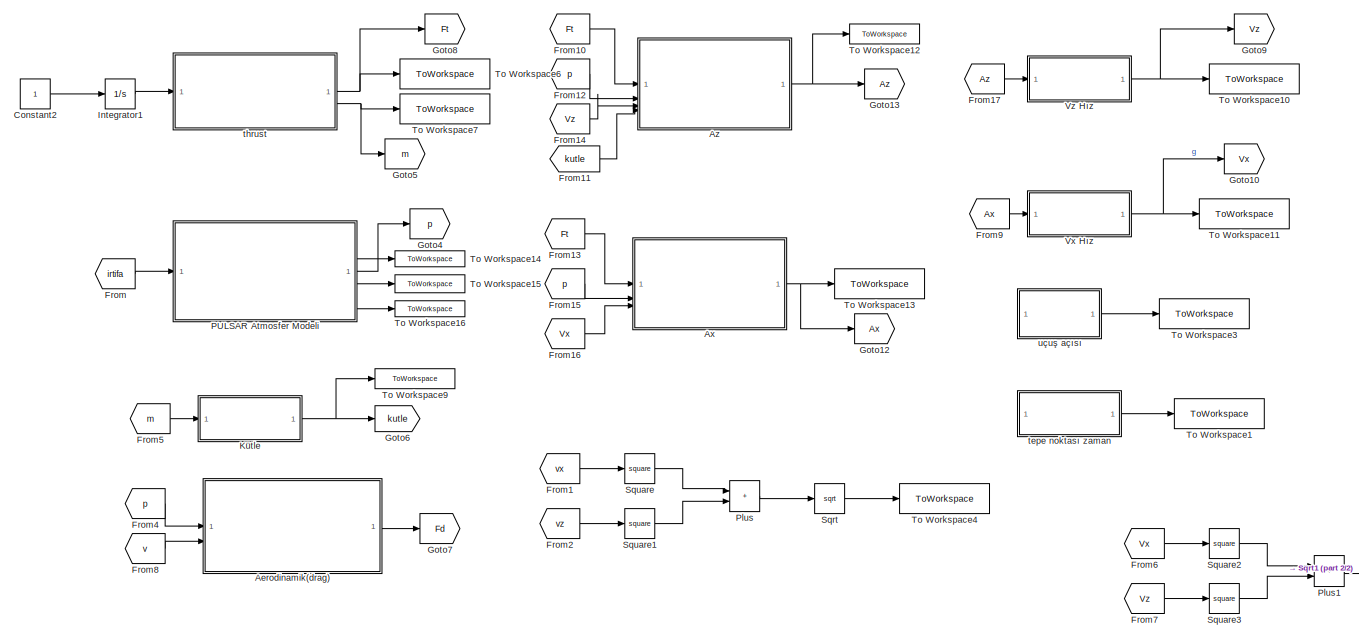
[diagram: root canvas - part 1/2, most of the canvas]
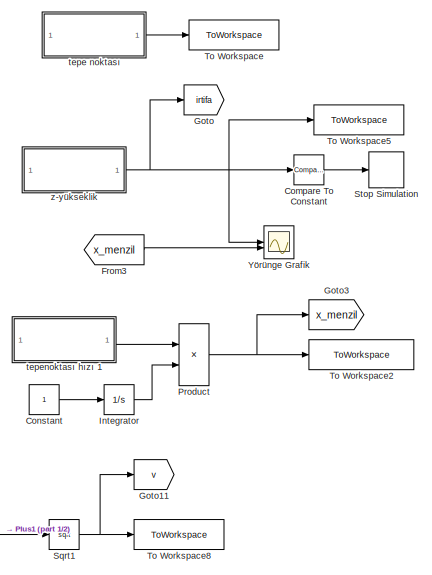
[diagram: root canvas - part 2/2, right side, full height]
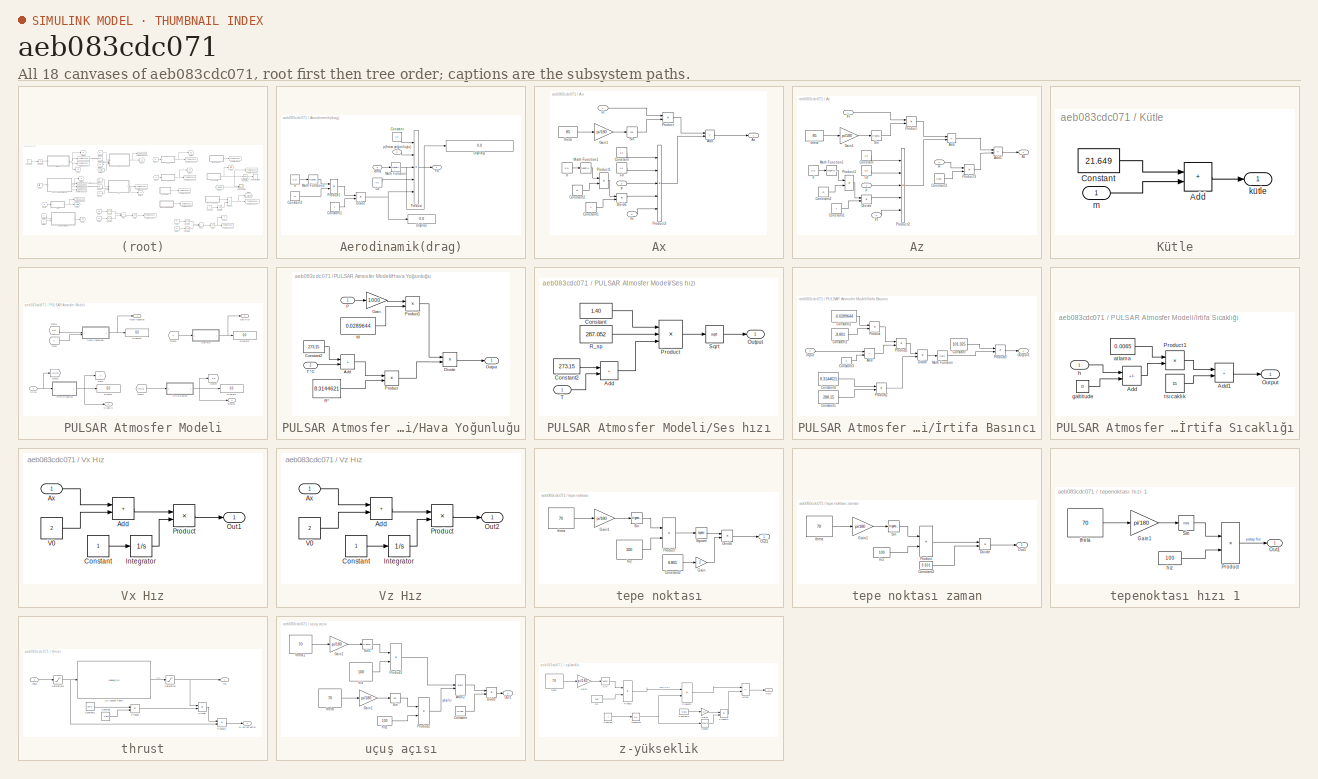
[diagram: thumbnail index - all 18 canvases of the model, root first then tree order]
MODEL slx_aeb083cdc071
KIND model
CONFIG AbsTol = auto
CONFIG EnableMultiTasking = off
CONFIG FixedStep = auto
CONFIG MaxStep = auto
CONFIG MinStep = auto
CONFIG RelTol = 1e-3
CONFIG SampleTimeConstraint = Unconstrained
CONFIG SolverName = VariableStepAuto
CONFIG StartTime = 0.0
CONFIG StopTime = 10
BLOCK [SubSystem] Aerodinamik(drag)
BLOCK [Constant] Aerodinamik(drag)/Cd
  Value = 0.5
BLOCK [Constant] Aerodinamik(drag)/Constant
  Value = 1/2
BLOCK [Constant] Aerodinamik(drag)/Constant1
  Value = 4
BLOCK [Constant] Aerodinamik(drag)/Constant2
  Value = pi
BLOCK [Display] Aerodinamik(drag)/Display
  Decimation = 1
BLOCK [Display] Aerodinamik(drag)/Display1
  Decimation = 1
  Format = long
BLOCK [Product] Aerodinamik(drag)/Divide
  Inputs = */
BLOCK [Outport] Aerodinamik(drag)/Fd
BLOCK [Math] Aerodinamik(drag)/Math Function
  Operator = magnitude^2
BLOCK [Math] Aerodinamik(drag)/Math Function1
  Operator = magnitude^2
BLOCK [Product] Aerodinamik(drag)/Product
  Inputs = 5
BLOCK [Product] Aerodinamik(drag)/Product1
BLOCK [Constant] Aerodinamik(drag)/d
  Value = 0.11
BLOCK [Inport] Aerodinamik(drag)/p(hava yoğunluğu)
BLOCK [Inport] Aerodinamik(drag)/v(m//s)
  Port = 2
BLOCK [SubSystem] Ax
BLOCK [Sum] Ax/Add
  IconShape = rectangular
  Inputs = +-
BLOCK [Outport] Ax/Ax
BLOCK [Constant] Ax/Cd
  Value = 0.5
BLOCK [Constant] Ax/Constant
  Value = 1/2
BLOCK [Constant] Ax/Constant1
  Value = 4
BLOCK [Constant] Ax/Constant2
  Value = pi
BLOCK [Product] Ax/Divide
  Inputs = */
BLOCK [Inport] Ax/Ft
BLOCK [Gain] Ax/Gain1
  Gain = pi/180
BLOCK [Math] Ax/Math Function1
  Operator = magnitude^2
BLOCK [Product] Ax/Product
BLOCK [Product] Ax/Product1
BLOCK [Product] Ax/Product2
  Inputs = 5
BLOCK [Trigonometry] Ax/Sin
  Operator = cos
BLOCK [Inport] Ax/Vx
  Port = 3
BLOCK [Constant] Ax/d
  Value = 0.11
BLOCK [Inport] Ax/p
  Port = 2
BLOCK [Constant] Ax/theta
  Value = 85
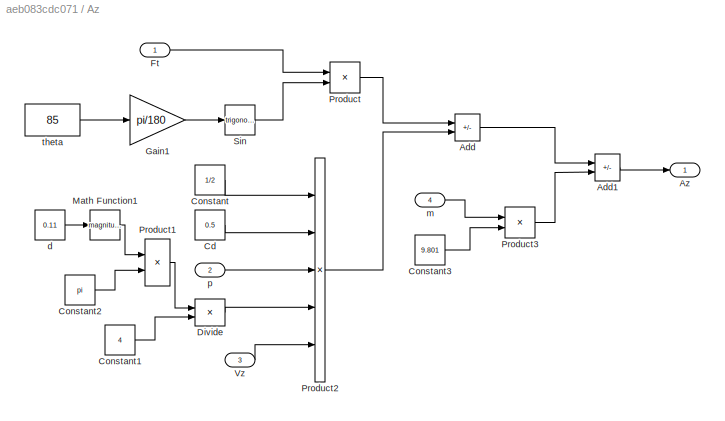
BLOCK [SubSystem] Az
BLOCK [Sum] Az/Add
  IconShape = rectangular
  Inputs = +-
BLOCK [Sum] Az/Add1
  IconShape = rectangular
  Inputs = +-
BLOCK [Outport] Az/Az
BLOCK [Constant] Az/Cd
  Value = 0.5
BLOCK [Constant] Az/Constant
  Value = 1/2
BLOCK [Constant] Az/Constant1
  Value = 4
BLOCK [Constant] Az/Constant2
  Value = pi
BLOCK [Constant] Az/Constant3
  Value = 9.801
BLOCK [Product] Az/Divide
  Inputs = */
BLOCK [Inport] Az/Ft
BLOCK [Gain] Az/Gain1
  Gain = pi/180
BLOCK [Math] Az/Math Function1
  Operator = magnitude^2
BLOCK [Product] Az/Product
BLOCK [Product] Az/Product1
BLOCK [Product] Az/Product2
  Inputs = 5
BLOCK [Product] Az/Product3
BLOCK [Trigonometry] Az/Sin
BLOCK [Inport] Az/Vz
  Port = 3
BLOCK [Constant] Az/d
  Value = 0.11
BLOCK [Inport] Az/m
  Port = 4
BLOCK [Inport] Az/p
  Port = 2
BLOCK [Constant] Az/theta
  Value = 85
BLOCK [Reference] Compare To Constant  REF=simulink/Logic and Bit
Operations/Compare
To Constant
  SourceBlock = simulink/Logic and Bit\nOperations/Compare\nTo Constant
  SourceType = Compare To Constant
BLOCK [Constant] Constant
BLOCK [Constant] Constant2
BLOCK [From] From
  GotoTag = irtifa
BLOCK [From] From1
  GotoTag = vx
BLOCK [From] From10
  GotoTag = Ft
BLOCK [From] From11
  GotoTag = kutle
BLOCK [From] From12
  GotoTag = p
BLOCK [From] From13
  GotoTag = Ft
BLOCK [From] From14
  GotoTag = Vz
BLOCK [From] From15
  GotoTag = p
BLOCK [From] From16
  GotoTag = Vx
BLOCK [From] From17
  GotoTag = Az
BLOCK [From] From2
  GotoTag = vz
BLOCK [From] From3
  GotoTag = x_menzil
BLOCK [From] From4
  GotoTag = p
BLOCK [From] From5
  GotoTag = m
BLOCK [From] From6
  GotoTag = Vx
BLOCK [From] From7
  GotoTag = Vz
BLOCK [From] From8
  GotoTag = v
BLOCK [From] From9
  GotoTag = Ax
BLOCK [Goto] Goto
  GotoTag = irtifa
BLOCK [Goto] Goto10
  GotoTag = Vx
BLOCK [Goto] Goto11
  GotoTag = v
BLOCK [Goto] Goto12
  GotoTag = Ax
BLOCK [Goto] Goto13
  GotoTag = Az
BLOCK [Goto] Goto3
  GotoTag = x_menzil
BLOCK [Goto] Goto4
  GotoTag = p
BLOCK [Goto] Goto5
  GotoTag = m
BLOCK [Goto] Goto6
  GotoTag = kutle
BLOCK [Goto] Goto7
  GotoTag = Fd
BLOCK [Goto] Goto8
  GotoTag = Ft
BLOCK [Goto] Goto9
  GotoTag = Vz
BLOCK [Integrator] Integrator
BLOCK [Integrator] Integrator1
BLOCK [SubSystem] Kütle
BLOCK [Sum] Kütle/Add
  IconShape = rectangular
BLOCK [Constant] Kütle/Constant
  Value = 21.649
BLOCK [Outport] Kütle/kütle
BLOCK [Inport] Kütle/m
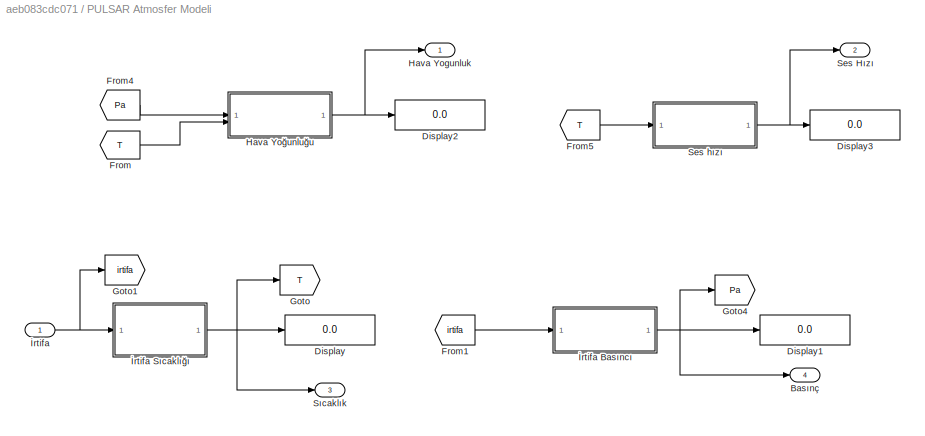
BLOCK [SubSystem] PULSAR Atmosfer Modeli
BLOCK [Outport] PULSAR Atmosfer Modeli/Basınç
  Port = 4
BLOCK [Display] PULSAR Atmosfer Modeli/Display
  Decimation = 1
BLOCK [Display] PULSAR Atmosfer Modeli/Display1
  Decimation = 1
BLOCK [Display] PULSAR Atmosfer Modeli/Display2
  Decimation = 1
BLOCK [Display] PULSAR Atmosfer Modeli/Display3
  Decimation = 1
BLOCK [From] PULSAR Atmosfer Modeli/From
  GotoTag = T
BLOCK [From] PULSAR Atmosfer Modeli/From1
  GotoTag = irtifa
BLOCK [From] PULSAR Atmosfer Modeli/From4
  GotoTag = Pa
BLOCK [From] PULSAR Atmosfer Modeli/From5
  GotoTag = T
BLOCK [Goto] PULSAR Atmosfer Modeli/Goto
  GotoTag = T
BLOCK [Goto] PULSAR Atmosfer Modeli/Goto1
  GotoTag = irtifa
BLOCK [Goto] PULSAR Atmosfer Modeli/Goto4
  GotoTag = Pa
BLOCK [Outport] PULSAR Atmosfer Modeli/Hava Yogunluk
BLOCK [SubSystem] PULSAR Atmosfer Modeli/Hava Yoğunluğu
BLOCK [Sum] PULSAR Atmosfer Modeli/Hava Yoğunluğu/Add
  IconShape = rectangular
BLOCK [Constant] PULSAR Atmosfer Modeli/Hava Yoğunluğu/Constant2
  Value = 273.15
BLOCK [Product] PULSAR Atmosfer Modeli/Hava Yoğunluğu/Divide
  Inputs = */
BLOCK [Gain] PULSAR Atmosfer Modeli/Hava Yoğunluğu/Gain
  Gain = 1000
BLOCK [Constant] PULSAR Atmosfer Modeli/Hava Yoğunluğu/M
  Value = 0.0289644
BLOCK [Outport] PULSAR Atmosfer Modeli/Hava Yoğunluğu/Output
BLOCK [Inport] PULSAR Atmosfer Modeli/Hava Yoğunluğu/P
BLOCK [Product] PULSAR Atmosfer Modeli/Hava Yoğunluğu/Product
BLOCK [Product] PULSAR Atmosfer Modeli/Hava Yoğunluğu/Product1
BLOCK [Constant] PULSAR Atmosfer Modeli/Hava Yoğunluğu/R*
  Value = 8.3144621
BLOCK [Inport] PULSAR Atmosfer Modeli/Hava Yoğunluğu/T*C
  Port = 2
BLOCK [Outport] PULSAR Atmosfer Modeli/Ses Hızı
  Port = 2
BLOCK [SubSystem] PULSAR Atmosfer Modeli/Ses hızı
BLOCK [Sum] PULSAR Atmosfer Modeli/Ses hızı/Add
  IconShape = rectangular
BLOCK [Constant] PULSAR Atmosfer Modeli/Ses hızı/Constant
  Value = 1.40
BLOCK [Constant] PULSAR Atmosfer Modeli/Ses hızı/Constant2
  Value = 273.15
BLOCK [Outport] PULSAR Atmosfer Modeli/Ses hızı/Output
BLOCK [Product] PULSAR Atmosfer Modeli/Ses hızı/Product
  Inputs = 3
BLOCK [Constant] PULSAR Atmosfer Modeli/Ses hızı/R_sp
  Value = 287.052
BLOCK [Sqrt] PULSAR Atmosfer Modeli/Ses hızı/Sqrt
BLOCK [Inport] PULSAR Atmosfer Modeli/Ses hızı/T
BLOCK [Outport] PULSAR Atmosfer Modeli/Sıcaklık
  Port = 3
BLOCK [Inport] PULSAR Atmosfer Modeli/İrtifa
BLOCK [SubSystem] PULSAR Atmosfer Modeli/İrtifa Basıncı
BLOCK [Sum] PULSAR Atmosfer Modeli/İrtifa Basıncı/Add
  IconShape = rectangular
  Inputs = --
BLOCK [Constant] PULSAR Atmosfer Modeli/İrtifa Basıncı/Constant
  Value = 101.325
BLOCK [Constant] PULSAR Atmosfer Modeli/İrtifa Basıncı/Constant1
  Value = -9.801
BLOCK [Constant] PULSAR Atmosfer Modeli/İrtifa Basıncı/Constant2
  Value = -0.0289644
BLOCK [Constant] PULSAR Atmosfer Modeli/İrtifa Basıncı/Constant3
  Value = 0
BLOCK [Constant] PULSAR Atmosfer Modeli/İrtifa Basıncı/Constant4
  Value = 8.3144621
BLOCK [Constant] PULSAR Atmosfer Modeli/İrtifa Basıncı/Constant5
  Value = 288.15
BLOCK [Product] PULSAR Atmosfer Modeli/İrtifa Basıncı/Divide
  Inputs = */
BLOCK [Inport] PULSAR Atmosfer Modeli/İrtifa Basıncı/Input
BLOCK [Math] PULSAR Atmosfer Modeli/İrtifa Basıncı/Math Function
BLOCK [Outport] PULSAR Atmosfer Modeli/İrtifa Basıncı/Output3
BLOCK [Product] PULSAR Atmosfer Modeli/İrtifa Basıncı/Product
BLOCK [Product] PULSAR Atmosfer Modeli/İrtifa Basıncı/Product1
BLOCK [Product] PULSAR Atmosfer Modeli/İrtifa Basıncı/Product2
BLOCK [Product] PULSAR Atmosfer Modeli/İrtifa Basıncı/Product3
BLOCK [SubSystem] PULSAR Atmosfer Modeli/İrtifa Sıcaklığı
BLOCK [Sum] PULSAR Atmosfer Modeli/İrtifa Sıcaklığı/Add
  IconShape = rectangular
  Inputs = --
BLOCK [Sum] PULSAR Atmosfer Modeli/İrtifa Sıcaklığı/Add1
  IconShape = rectangular
BLOCK [Outport] PULSAR Atmosfer Modeli/İrtifa Sıcaklığı/Output
BLOCK [Product] PULSAR Atmosfer Modeli/İrtifa Sıcaklığı/Product1
BLOCK [Constant] PULSAR Atmosfer Modeli/İrtifa Sıcaklığı/atlama
  Value = 0.0065
BLOCK [Constant] PULSAR Atmosfer Modeli/İrtifa Sıcaklığı/galtitude
  Value = 0
BLOCK [Inport] PULSAR Atmosfer Modeli/İrtifa Sıcaklığı/h
BLOCK [Constant] PULSAR Atmosfer Modeli/İrtifa Sıcaklığı/tsıcaklık
  Value = 15
BLOCK [Sum] Plus
  IconShape = rectangular
BLOCK [Sum] Plus1
  IconShape = rectangular
BLOCK [Product] Product
BLOCK [Sqrt] Sqrt
BLOCK [Sqrt] Sqrt1
BLOCK [Math] Square
  Operator = square
BLOCK [Math] Square1
  Operator = square
BLOCK [Math] Square2
  Operator = square
BLOCK [Math] Square3
  Operator = square
BLOCK [Stop] Stop Simulation
BLOCK [ToWorkspace] To Workspace
  FixptAsFi = on
  MaxDataPoints = inf
  SampleTime = -1
  SaveFormat = Timeseries
  VariableName = tepe
BLOCK [ToWorkspace] To Workspace1
  FixptAsFi = on
  MaxDataPoints = inf
  SampleTime = -1
  SaveFormat = Timeseries
  VariableName = zamantepe
BLOCK [ToWorkspace] To Workspace10
  FixptAsFi = on
  MaxDataPoints = inf
  SampleTime = -1
  SaveFormat = Timeseries
  VariableName = Vz
BLOCK [ToWorkspace] To Workspace11
  FixptAsFi = on
  MaxDataPoints = inf
  SampleTime = -1
  SaveFormat = Timeseries
  VariableName = Vx
BLOCK [ToWorkspace] To Workspace12
  FixptAsFi = on
  MaxDataPoints = inf
  SampleTime = -1
  SaveFormat = Timeseries
  VariableName = Az
BLOCK [ToWorkspace] To Workspace13
  FixptAsFi = on
  MaxDataPoints = inf
  SampleTime = -1
  SaveFormat = Timeseries
  VariableName = Ax
BLOCK [ToWorkspace] To Workspace14
  FixptAsFi = on
  MaxDataPoints = inf
  SampleTime = -1
  SaveFormat = Timeseries
  VariableName = seshizi
BLOCK [ToWorkspace] To Workspace15
  FixptAsFi = on
  MaxDataPoints = inf
  SampleTime = -1
  SaveFormat = Timeseries
  VariableName = sicaklik
BLOCK [ToWorkspace] To Workspace16
  FixptAsFi = on
  MaxDataPoints = inf
  SampleTime = -1
  SaveFormat = Timeseries
  VariableName = basinc
BLOCK [ToWorkspace] To Workspace2
  FixptAsFi = on
  MaxDataPoints = inf
  SampleTime = -1
  SaveFormat = Timeseries
  VariableName = x_menzil
BLOCK [ToWorkspace] To Workspace3
  FixptAsFi = on
  MaxDataPoints = inf
  SampleTime = -1
  SaveFormat = Timeseries
  VariableName = uaci
BLOCK [ToWorkspace] To Workspace4
  FixptAsFi = on
  MaxDataPoints = inf
  SampleTime = -1
  SaveFormat = Timeseries
  VariableName = bsonhiz
BLOCK [ToWorkspace] To Workspace5
  FixptAsFi = on
  MaxDataPoints = inf
  SampleTime = -1
  SaveFormat = Timeseries
  VariableName = irtifa
BLOCK [ToWorkspace] To Workspace6
  FixptAsFi = on
  MaxDataPoints = inf
  SampleTime = -1
  VariableName = zitki
BLOCK [ToWorkspace] To Workspace7
  FixptAsFi = on
  MaxDataPoints = inf
  SampleTime = -1
  SaveFormat = Timeseries
  VariableName = m
BLOCK [ToWorkspace] To Workspace8
  FixptAsFi = on
  MaxDataPoints = inf
  SampleTime = -1
  SaveFormat = Timeseries
  VariableName = ktrhiz
BLOCK [ToWorkspace] To Workspace9
  FixptAsFi = on
  MaxDataPoints = inf
  SampleTime = -1
  SaveFormat = Timeseries
  VariableName = kutle
BLOCK [SubSystem] Vx Hız
BLOCK [Sum] Vx Hız/Add
  IconShape = rectangular
BLOCK [Inport] Vx Hız/Ax
BLOCK [Constant] Vx Hız/Constant
BLOCK [Integrator] Vx Hız/Integrator
BLOCK [Outport] Vx Hız/Out1
BLOCK [Product] Vx Hız/Product
BLOCK [Constant] Vx Hız/V0
  Value = 2
BLOCK [SubSystem] Vz Hız
BLOCK [Sum] Vz Hız/Add
  IconShape = rectangular
BLOCK [Inport] Vz Hız/Ax
BLOCK [Constant] Vz Hız/Constant
BLOCK [Integrator] Vz Hız/Integrator
BLOCK [Outport] Vz Hız/Out2
BLOCK [Product] Vz Hız/Product
BLOCK [Constant] Vz Hız/V0
  Value = 2
BLOCK [Scope] Yörünge Grafik
  Floating = off
  NumInputPorts = 2
  ScopeSpecificationString = Simulink.scopes.TimeScopeBlockCfg('CurrentConfiguration', extmgr.ConfigurationSet(extmgr.Configuration('Core','General UI',true),extmgr.Configuration('Core','Source UI',true),extmgr.Configuration('Sources','WiredSimulink',true),extmgr.Configuration('Visuals','Time Domain',true,'SerializedDisplays',{struct('MinYLimReal','-56.30944','MaxYLimReal','506.78499','YLabelReal','','MinYLimMag','0.00000','M...<+1432ch>
BLOCK [SubSystem] tepe noktası
BLOCK [SubSystem] tepe noktası zaman
BLOCK [Constant] tepe noktası zaman/Constant2
  Value = 9.801
BLOCK [Product] tepe noktası zaman/Divide
  Inputs = */
BLOCK [Gain] tepe noktası zaman/Gain1
  Gain = pi/180
BLOCK [Outport] tepe noktası zaman/Out1
BLOCK [Product] tepe noktası zaman/Product
BLOCK [Trigonometry] tepe noktası zaman/Sin
BLOCK [Constant] tepe noktası zaman/hız
  Value = 100
BLOCK [Constant] tepe noktası zaman/theta
  Value = 70
BLOCK [Constant] tepe noktası/Constant2
  Value = 9.801
BLOCK [Product] tepe noktası/Divide
  Inputs = */
BLOCK [Gain] tepe noktası/Gain
  Gain = 2
BLOCK [Gain] tepe noktası/Gain1
  Gain = pi/180
BLOCK [Outport] tepe noktası/Out1
BLOCK [Product] tepe noktası/Product
BLOCK [Trigonometry] tepe noktası/Sin
BLOCK [Math] tepe noktası/Square
  Operator = square
BLOCK [Constant] tepe noktası/hız
  Value = 100
BLOCK [Constant] tepe noktası/theta
  Value = 70
BLOCK [SubSystem] tepenoktası hızı 1
BLOCK [Gain] tepenoktası hızı 1/Gain1
  Gain = pi/180
BLOCK [Outport] tepenoktası hızı 1/Out1
BLOCK [Product] tepenoktası hızı 1/Product
BLOCK [Trigonometry] tepenoktası hızı 1/Sin
  Operator = cos
BLOCK [Constant] tepenoktası hızı 1/hız
  Value = 100
BLOCK [Constant] tepenoktası hızı 1/theta
  Value = 70
BLOCK [SubSystem] thrust
BLOCK [Lookup_n-D] thrust/1-D Lookup Table
  BreakpointsForDimension1 = zamanp
  InputPortMap = u0
  InternalRulePriority = Speed
  NumberOfTableDimensions = 1
  RndMeth = Simplest
  Table = itkip
BLOCK [Constant] thrust/Constant
  Value = -9.801
BLOCK [Constant] thrust/Constant1
  Value = 209.5
BLOCK [Product] thrust/Divide
  Inputs = */
BLOCK [Inport] thrust/Input
BLOCK [Product] thrust/Product
BLOCK [Product] thrust/Product1
BLOCK [Saturate] thrust/Saturation
  LowerLimit = 0
  UpperLimit = 3700
BLOCK [Saturate] thrust/Saturation1
  LowerLimit = 0
  UpperLimit = 6.5
BLOCK [Outport] thrust/itki
BLOCK [Outport] thrust/m (atılan kütle)
  Port = 2
BLOCK [SubSystem] uçuş açısı
BLOCK [Trigonometry] uçuş açısı/Atan2
  Operator = atan2
BLOCK [Constant] uçuş açısı/Constant
  Value = pi/180
BLOCK [Product] uçuş açısı/Divide
  Inputs = */
BLOCK [Gain] uçuş açısı/Gain1
  Gain = pi/180
BLOCK [Gain] uçuş açısı/Gain2
  Gain = pi/180
BLOCK [Outport] uçuş açısı/Out1
BLOCK [Product] uçuş açısı/Product1
BLOCK [Product] uçuş açısı/Product2
BLOCK [Trigonometry] uçuş açısı/Sin
  Operator = cos
BLOCK [Trigonometry] uçuş açısı/Sin1
BLOCK [Constant] uçuş açısı/hız
  Value = 100
BLOCK [Constant] uçuş açısı/hız1
  Value = 100
BLOCK [Constant] uçuş açısı/theta
  Value = 70
BLOCK [Constant] uçuş açısı/theta1
  Value = 70
BLOCK [SubSystem] z-yükseklik
BLOCK [Constant] z-yükseklik/Constant
BLOCK [Constant] z-yükseklik/Constant3
  Value = 9.801
BLOCK [Gain] z-yükseklik/Gain1
  Gain = pi/180
BLOCK [Gain] z-yükseklik/Gain3
  Gain = 1/2
BLOCK [Integrator] z-yükseklik/Integrator
BLOCK [Sum] z-yükseklik/Minus
  IconShape = rectangular
  Inputs = +-
BLOCK [Outport] z-yükseklik/Out1
BLOCK [Product] z-yükseklik/Product
BLOCK [Product] z-yükseklik/Product2
BLOCK [Product] z-yükseklik/Product3
BLOCK [Trigonometry] z-yükseklik/Sin
BLOCK [Math] z-yükseklik/Square
  Operator = square
BLOCK [Constant] z-yükseklik/hız
  Value = 100
BLOCK [Constant] z-yükseklik/theta
  Value = 70
LINE Aerodinamik(drag)/Cd:1 -> Aerodinamik(drag)/Product:4
LINE Aerodinamik(drag)/Constant1:1 -> Aerodinamik(drag)/Divide:2
LINE Aerodinamik(drag)/Constant2:1 -> Aerodinamik(drag)/Product1:2
LINE Aerodinamik(drag)/Constant:1 -> Aerodinamik(drag)/Product:1
NET Aerodinamik(drag)/Divide:1 -> Aerodinamik(drag)/Display:1, Aerodinamik(drag)/Product:5
LINE Aerodinamik(drag)/Math Function1:1 -> Aerodinamik(drag)/Product1:1
NET Aerodinamik(drag)/Math Function:1 -> Aerodinamik(drag)/Display1:1, Aerodinamik(drag)/Product:3
LINE Aerodinamik(drag)/Product1:1 -> Aerodinamik(drag)/Divide:1
LINE Aerodinamik(drag)/Product:1 -> Aerodinamik(drag)/Fd:1
LINE Aerodinamik(drag)/d:1 -> Aerodinamik(drag)/Math Function1:1
LINE Aerodinamik(drag)/p(hava yoğunluğu):1 -> Aerodinamik(drag)/Product:2
LINE Aerodinamik(drag)/v(m//s):1 -> Aerodinamik(drag)/Math Function:1
LINE Aerodinamik(drag):1 -> Goto7:1
LINE Ax/Add:1 -> Ax/Ax:1
LINE Ax/Cd:1 -> Ax/Product2:2
LINE Ax/Constant1:1 -> Ax/Divide:2
LINE Ax/Constant2:1 -> Ax/Product1:2
LINE Ax/Constant:1 -> Ax/Product2:1
LINE Ax/Divide:1 -> Ax/Product2:4
LINE Ax/Ft:1 -> Ax/Product:1
LINE Ax/Gain1:1 -> Ax/Sin:1
LINE Ax/Math Function1:1 -> Ax/Product1:1
LINE Ax/Product1:1 -> Ax/Divide:1
LINE Ax/Product2:1 -> Ax/Add:2
LINE Ax/Product:1 -> Ax/Add:1
LINE Ax/Sin:1 -> Ax/Product:2
LINE Ax/Vx:1 -> Ax/Product2:5
LINE Ax/d:1 -> Ax/Math Function1:1
LINE Ax/p:1 -> Ax/Product2:3
LINE Ax/theta:1 -> Ax/Gain1:1
NET Ax:1 -> Goto12:1, To Workspace13:1
LINE Az/Add1:1 -> Az/Az:1
LINE Az/Add:1 -> Az/Add1:1
LINE Az/Cd:1 -> Az/Product2:2
LINE Az/Constant1:1 -> Az/Divide:2
LINE Az/Constant2:1 -> Az/Product1:2
LINE Az/Constant3:1 -> Az/Product3:2
LINE Az/Constant:1 -> Az/Product2:1
LINE Az/Divide:1 -> Az/Product2:4
LINE Az/Ft:1 -> Az/Product:1
LINE Az/Gain1:1 -> Az/Sin:1
LINE Az/Math Function1:1 -> Az/Product1:1
LINE Az/Product1:1 -> Az/Divide:1
LINE Az/Product2:1 -> Az/Add:2
LINE Az/Product3:1 -> Az/Add1:2
LINE Az/Product:1 -> Az/Add:1
LINE Az/Sin:1 -> Az/Product:2
LINE Az/Vz:1 -> Az/Product2:5
LINE Az/d:1 -> Az/Math Function1:1
LINE Az/m:1 -> Az/Product3:1
LINE Az/p:1 -> Az/Product2:3
LINE Az/theta:1 -> Az/Gain1:1
NET Az:1 -> Goto13:1, To Workspace12:1
LINE Compare To Constant:1 -> Stop Simulation:1
LINE Constant2:1 -> Integrator1:1
LINE Constant:1 -> Integrator:1
LINE From10:1 -> Az:1
LINE From11:1 -> Az:4
LINE From12:1 -> Az:2
LINE From13:1 -> Ax:1
LINE From14:1 -> Az:3
LINE From15:1 -> Ax:2
LINE From16:1 -> Ax:3
LINE From17:1 -> Vz Hız:1
LINE From1:1 -> Square:1
LINE From2:1 -> Square1:1
LINE From3:1 -> Yörünge Grafik:2
LINE From4:1 -> Aerodinamik(drag):1
LINE From5:1 -> Kütle:1
LINE From6:1 -> Square2:1
LINE From7:1 -> Square3:1
LINE From8:1 -> Aerodinamik(drag):2
LINE From9:1 -> Vx Hız:1
LINE From:1 -> PULSAR Atmosfer Modeli:1
LINE Integrator1:1 -> thrust:1
LINE Integrator:1 -> Product:2
LINE Kütle/Add:1 -> Kütle/kütle:1
LINE Kütle/Constant:1 -> Kütle/Add:1
LINE Kütle/m:1 -> Kütle/Add:2
NET Kütle:1 -> Goto6:1, To Workspace9:1
LINE PULSAR Atmosfer Modeli/From1:1 -> PULSAR Atmosfer Modeli/İrtifa Basıncı:1
LINE PULSAR Atmosfer Modeli/From4:1 -> PULSAR Atmosfer Modeli/Hava Yoğunluğu:1
LINE PULSAR Atmosfer Modeli/From5:1 -> PULSAR Atmosfer Modeli/Ses hızı:1
LINE PULSAR Atmosfer Modeli/From:1 -> PULSAR Atmosfer Modeli/Hava Yoğunluğu:2
LINE PULSAR Atmosfer Modeli/Hava Yoğunluğu/Add:1 -> PULSAR Atmosfer Modeli/Hava Yoğunluğu/Product:1
LINE PULSAR Atmosfer Modeli/Hava Yoğunluğu/Constant2:1 -> PULSAR Atmosfer Modeli/Hava Yoğunluğu/Add:1
LINE PULSAR Atmosfer Modeli/Hava Yoğunluğu/Divide:1 -> PULSAR Atmosfer Modeli/Hava Yoğunluğu/Output:1
LINE PULSAR Atmosfer Modeli/Hava Yoğunluğu/Gain:1 -> PULSAR Atmosfer Modeli/Hava Yoğunluğu/Product1:1
LINE PULSAR Atmosfer Modeli/Hava Yoğunluğu/M:1 -> PULSAR Atmosfer Modeli/Hava Yoğunluğu/Product1:2
LINE PULSAR Atmosfer Modeli/Hava Yoğunluğu/P:1 -> PULSAR Atmosfer Modeli/Hava Yoğunluğu/Gain:1
LINE PULSAR Atmosfer Modeli/Hava Yoğunluğu/Product1:1 -> PULSAR Atmosfer Modeli/Hava Yoğunluğu/Divide:1
LINE PULSAR Atmosfer Modeli/Hava Yoğunluğu/Product:1 -> PULSAR Atmosfer Modeli/Hava Yoğunluğu/Divide:2
LINE PULSAR Atmosfer Modeli/Hava Yoğunluğu/R*:1 -> PULSAR Atmosfer Modeli/Hava Yoğunluğu/Product:2
LINE PULSAR Atmosfer Modeli/Hava Yoğunluğu/T*C:1 -> PULSAR Atmosfer Modeli/Hava Yoğunluğu/Add:2
NET PULSAR Atmosfer Modeli/Hava Yoğunluğu:1 -> PULSAR Atmosfer Modeli/Display2:1, PULSAR Atmosfer Modeli/Hava Yogunluk:1
LINE PULSAR Atmosfer Modeli/Ses hızı/Add:1 -> PULSAR Atmosfer Modeli/Ses hızı/Product:3
LINE PULSAR Atmosfer Modeli/Ses hızı/Constant2:1 -> PULSAR Atmosfer Modeli/Ses hızı/Add:1
LINE PULSAR Atmosfer Modeli/Ses hızı/Constant:1 -> PULSAR Atmosfer Modeli/Ses hızı/Product:1
LINE PULSAR Atmosfer Modeli/Ses hızı/Product:1 -> PULSAR Atmosfer Modeli/Ses hızı/Sqrt:1
LINE PULSAR Atmosfer Modeli/Ses hızı/R_sp:1 -> PULSAR Atmosfer Modeli/Ses hızı/Product:2
LINE PULSAR Atmosfer Modeli/Ses hızı/Sqrt:1 -> PULSAR Atmosfer Modeli/Ses hızı/Output:1
LINE PULSAR Atmosfer Modeli/Ses hızı/T:1 -> PULSAR Atmosfer Modeli/Ses hızı/Add:2
NET PULSAR Atmosfer Modeli/Ses hızı:1 -> PULSAR Atmosfer Modeli/Display3:1, PULSAR Atmosfer Modeli/Ses Hızı:1
LINE PULSAR Atmosfer Modeli/İrtifa Basıncı/Add:1 -> PULSAR Atmosfer Modeli/İrtifa Basıncı/Product1:2
LINE PULSAR Atmosfer Modeli/İrtifa Basıncı/Constant1:1 -> PULSAR Atmosfer Modeli/İrtifa Basıncı/Product:2
LINE PULSAR Atmosfer Modeli/İrtifa Basıncı/Constant2:1 -> PULSAR Atmosfer Modeli/İrtifa Basıncı/Product:1
LINE PULSAR Atmosfer Modeli/İrtifa Basıncı/Constant3:1 -> PULSAR Atmosfer Modeli/İrtifa Basıncı/Add:2
LINE PULSAR Atmosfer Modeli/İrtifa Basıncı/Constant4:1 -> PULSAR Atmosfer Modeli/İrtifa Basıncı/Product2:1
LINE PULSAR Atmosfer Modeli/İrtifa Basıncı/Constant5:1 -> PULSAR Atmosfer Modeli/İrtifa Basıncı/Product2:2
LINE PULSAR Atmosfer Modeli/İrtifa Basıncı/Constant:1 -> PULSAR Atmosfer Modeli/İrtifa Basıncı/Product3:1
LINE PULSAR Atmosfer Modeli/İrtifa Basıncı/Divide:1 -> PULSAR Atmosfer Modeli/İrtifa Basıncı/Math Function:1
LINE PULSAR Atmosfer Modeli/İrtifa Basıncı/Input:1 -> PULSAR Atmosfer Modeli/İrtifa Basıncı/Add:1
LINE PULSAR Atmosfer Modeli/İrtifa Basıncı/Math Function:1 -> PULSAR Atmosfer Modeli/İrtifa Basıncı/Product3:2
LINE PULSAR Atmosfer Modeli/İrtifa Basıncı/Product1:1 -> PULSAR Atmosfer Modeli/İrtifa Basıncı/Divide:1
LINE PULSAR Atmosfer Modeli/İrtifa Basıncı/Product2:1 -> PULSAR Atmosfer Modeli/İrtifa Basıncı/Divide:2
LINE PULSAR Atmosfer Modeli/İrtifa Basıncı/Product3:1 -> PULSAR Atmosfer Modeli/İrtifa Basıncı/Output3:1
LINE PULSAR Atmosfer Modeli/İrtifa Basıncı/Product:1 -> PULSAR Atmosfer Modeli/İrtifa Basıncı/Product1:1
NET PULSAR Atmosfer Modeli/İrtifa Basıncı:1 -> PULSAR Atmosfer Modeli/Basınç:1, PULSAR Atmosfer Modeli/Display1:1, PULSAR Atmosfer Modeli/Goto4:1
LINE PULSAR Atmosfer Modeli/İrtifa Sıcaklığı/Add1:1 -> PULSAR Atmosfer Modeli/İrtifa Sıcaklığı/Output:1
LINE PULSAR Atmosfer Modeli/İrtifa Sıcaklığı/Add:1 -> PULSAR Atmosfer Modeli/İrtifa Sıcaklığı/Product1:2
LINE PULSAR Atmosfer Modeli/İrtifa Sıcaklığı/Product1:1 -> PULSAR Atmosfer Modeli/İrtifa Sıcaklığı/Add1:1
LINE PULSAR Atmosfer Modeli/İrtifa Sıcaklığı/atlama:1 -> PULSAR Atmosfer Modeli/İrtifa Sıcaklığı/Product1:1
LINE PULSAR Atmosfer Modeli/İrtifa Sıcaklığı/galtitude:1 -> PULSAR Atmosfer Modeli/İrtifa Sıcaklığı/Add:2
LINE PULSAR Atmosfer Modeli/İrtifa Sıcaklığı/h:1 -> PULSAR Atmosfer Modeli/İrtifa Sıcaklığı/Add:1
LINE PULSAR Atmosfer Modeli/İrtifa Sıcaklığı/tsıcaklık:1 -> PULSAR Atmosfer Modeli/İrtifa Sıcaklığı/Add1:2
NET PULSAR Atmosfer Modeli/İrtifa Sıcaklığı:1 -> PULSAR Atmosfer Modeli/Display:1, PULSAR Atmosfer Modeli/Goto:1, PULSAR Atmosfer Modeli/Sıcaklık:1
NET PULSAR Atmosfer Modeli/İrtifa:1 -> PULSAR Atmosfer Modeli/Goto1:1, PULSAR Atmosfer Modeli/İrtifa Sıcaklığı:1
LINE PULSAR Atmosfer Modeli:1 -> Goto4:1
LINE PULSAR Atmosfer Modeli:2 -> To Workspace14:1
LINE PULSAR Atmosfer Modeli:3 -> To Workspace15:1
LINE PULSAR Atmosfer Modeli:4 -> To Workspace16:1
LINE Plus1:1 -> Sqrt1:1
LINE Plus:1 -> Sqrt:1
NET Product:1 -> Goto3:1, To Workspace2:1
NET Sqrt1:1 -> Goto11:1, To Workspace8:1
LINE Sqrt:1 -> To Workspace4:1
LINE Square1:1 -> Plus:2
LINE Square2:1 -> Plus1:1
LINE Square3:1 -> Plus1:2
LINE Square:1 -> Plus:1
LINE Vx Hız/Add:1 -> Vx Hız/Product:1
LINE Vx Hız/Ax:1 -> Vx Hız/Add:1
LINE Vx Hız/Constant:1 -> Vx Hız/Integrator:1
LINE Vx Hız/Integrator:1 -> Vx Hız/Product:2
LINE Vx Hız/Product:1 -> Vx Hız/Out1:1
LINE Vx Hız/V0:1 -> Vx Hız/Add:2
NET Vx Hız:1 -> Goto10:1, To Workspace11:1
LINE Vz Hız/Add:1 -> Vz Hız/Product:1
LINE Vz Hız/Ax:1 -> Vz Hız/Add:1
LINE Vz Hız/Constant:1 -> Vz Hız/Integrator:1
LINE Vz Hız/Integrator:1 -> Vz Hız/Product:2
LINE Vz Hız/Product:1 -> Vz Hız/Out2:1
LINE Vz Hız/V0:1 -> Vz Hız/Add:2
NET Vz Hız:1 -> Goto9:1, To Workspace10:1
LINE tepe noktası zaman/Constant2:1 -> tepe noktası zaman/Divide:2
LINE tepe noktası zaman/Divide:1 -> tepe noktası zaman/Out1:1
LINE tepe noktası zaman/Gain1:1 -> tepe noktası zaman/Sin:1
LINE tepe noktası zaman/Product:1 -> tepe noktası zaman/Divide:1
LINE tepe noktası zaman/Sin:1 -> tepe noktası zaman/Product:1
LINE tepe noktası zaman/hız:1 -> tepe noktası zaman/Product:2
LINE tepe noktası zaman/theta:1 -> tepe noktası zaman/Gain1:1
LINE tepe noktası zaman:1 -> To Workspace1:1
LINE tepe noktası/Constant2:1 -> tepe noktası/Gain:1
LINE tepe noktası/Divide:1 -> tepe noktası/Out1:1
LINE tepe noktası/Gain1:1 -> tepe noktası/Sin:1
LINE tepe noktası/Gain:1 -> tepe noktası/Divide:2
LINE tepe noktası/Product:1 -> tepe noktası/Square:1
LINE tepe noktası/Sin:1 -> tepe noktası/Product:1
LINE tepe noktası/Square:1 -> tepe noktası/Divide:1
LINE tepe noktası/hız:1 -> tepe noktası/Product:2
LINE tepe noktası/theta:1 -> tepe noktası/Gain1:1
LINE tepe noktası:1 -> To Workspace:1
LINE tepenoktası hızı 1/Gain1:1 -> tepenoktası hızı 1/Sin:1
LINE tepenoktası hızı 1/Product:1 -> tepenoktası hızı 1/Out1:1
LINE tepenoktası hızı 1/Sin:1 -> tepenoktası hızı 1/Product:1
LINE tepenoktası hızı 1/hız:1 -> tepenoktası hızı 1/Product:2
LINE tepenoktası hızı 1/theta:1 -> tepenoktası hızı 1/Gain1:1
LINE tepenoktası hızı 1:1 -> Product:1
LINE thrust/1-D Lookup Table:1 -> thrust/Saturation:1
LINE thrust/Constant1:1 -> thrust/Product:1
LINE thrust/Constant:1 -> thrust/Product:2
LINE thrust/Divide:1 -> thrust/Product1:1
LINE thrust/Input:1 -> thrust/Saturation1:1
LINE thrust/Product1:1 -> thrust/m (atılan kütle):1
LINE thrust/Product:1 -> thrust/Divide:2
NET thrust/Saturation1:1 -> thrust/1-D Lookup Table:1, thrust/Product1:2
NET thrust/Saturation:1 -> thrust/Divide:1, thrust/itki:1
NET thrust:1 -> Goto8:1, To Workspace6:1
NET thrust:2 -> Goto5:1, To Workspace7:1
LINE uçuş açısı/Atan2:1 -> uçuş açısı/Divide:1
LINE uçuş açısı/Constant:1 -> uçuş açısı/Divide:2
LINE uçuş açısı/Divide:1 -> uçuş açısı/Out1:1
LINE uçuş açısı/Gain1:1 -> uçuş açısı/Sin:1
LINE uçuş açısı/Gain2:1 -> uçuş açısı/Sin1:1
LINE uçuş açısı/Product1:1 -> uçuş açısı/Atan2:1
LINE uçuş açısı/Product2:1 -> uçuş açısı/Atan2:2
LINE uçuş açısı/Sin1:1 -> uçuş açısı/Product1:1
LINE uçuş açısı/Sin:1 -> uçuş açısı/Product2:1
LINE uçuş açısı/hız1:1 -> uçuş açısı/Product2:2
LINE uçuş açısı/hız:1 -> uçuş açısı/Product1:2
LINE uçuş açısı/theta1:1 -> uçuş açısı/Gain2:1
LINE uçuş açısı/theta:1 -> uçuş açısı/Gain1:1
LINE uçuş açısı:1 -> To Workspace3:1
LINE z-yükseklik/Constant3:1 -> z-yükseklik/Gain3:1
LINE z-yükseklik/Constant:1 -> z-yükseklik/Integrator:1
LINE z-yükseklik/Gain1:1 -> z-yükseklik/Sin:1
LINE z-yükseklik/Gain3:1 -> z-yükseklik/Product3:1
NET z-yükseklik/Integrator:1 -> z-yükseklik/Product2:2, z-yükseklik/Square:1
LINE z-yükseklik/Minus:1 -> z-yükseklik/Out1:1
LINE z-yükseklik/Product2:1 -> z-yükseklik/Minus:1
LINE z-yükseklik/Product3:1 -> z-yükseklik/Minus:2
LINE z-yükseklik/Product:1 -> z-yükseklik/Product2:1
LINE z-yükseklik/Sin:1 -> z-yükseklik/Product:1
LINE z-yükseklik/Square:1 -> z-yükseklik/Product3:2
LINE z-yükseklik/hız:1 -> z-yükseklik/Product:2
LINE z-yükseklik/theta:1 -> z-yükseklik/Gain1:1
NET z-yükseklik:1 -> Compare To Constant:1, Goto:1, To Workspace5:1, Yörünge Grafik:1
note: NET lines group one-source signal fan-out (src -> all destinations, sorted); 1:1 wires keep LINE
